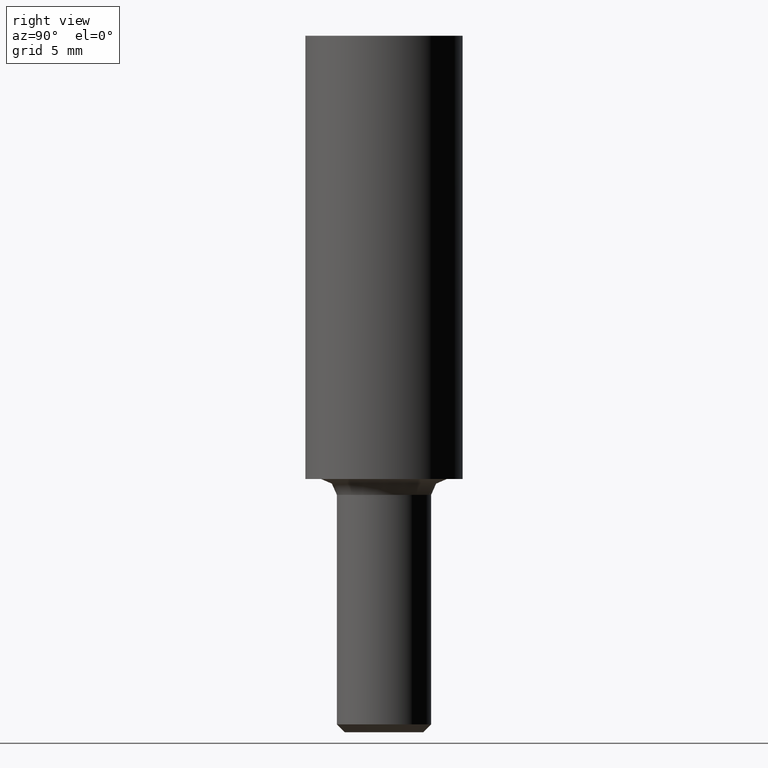
[diagram: clean part render]
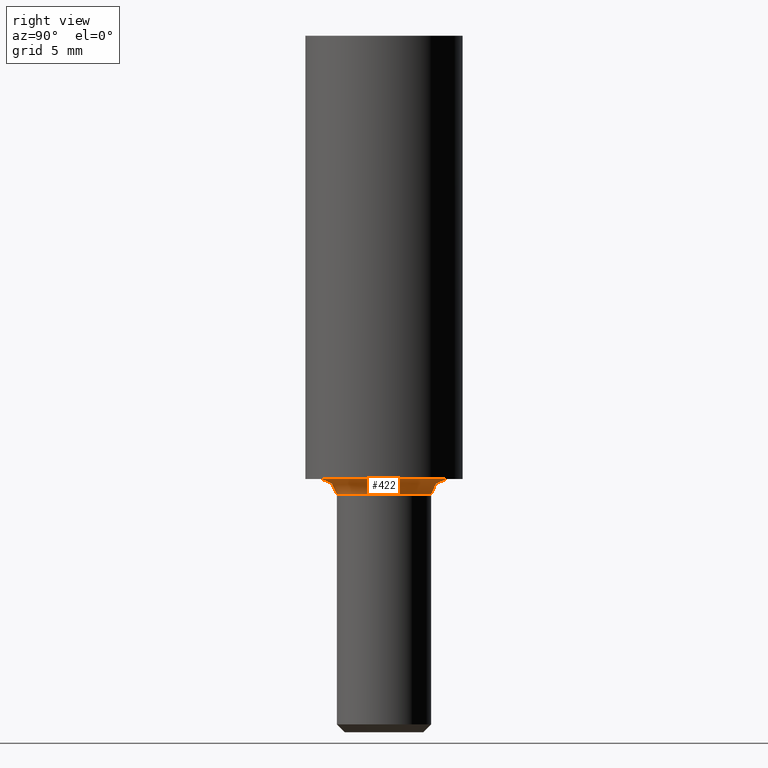
[diagram: same view with one face highlighted and labeled with its STEP entity id]
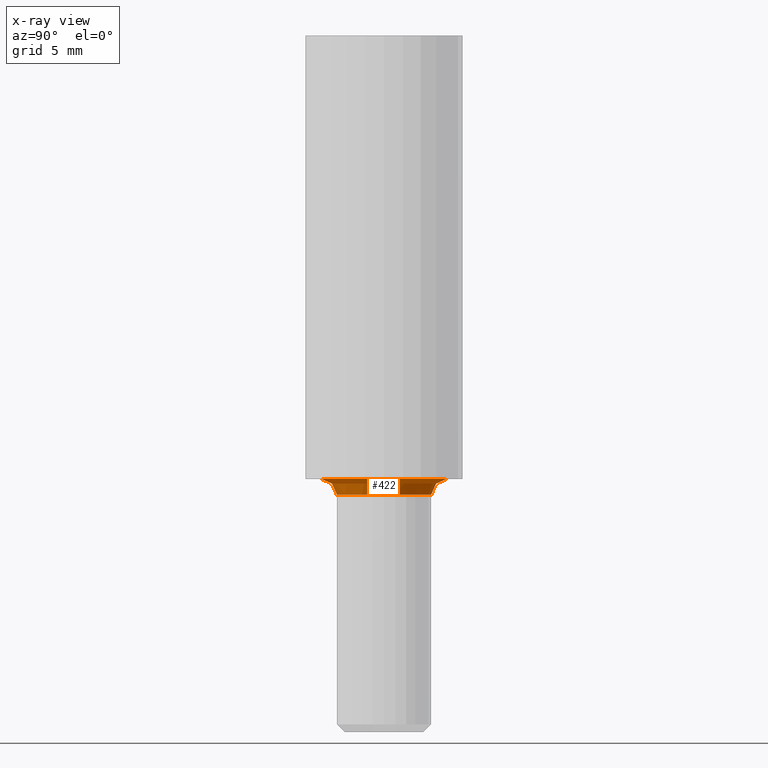
[diagram: x-ray of the same camera — body ghosted, the highlighted face saturated]
A machine part, right view. The second image highlights one B-rep face of the part: STEP entity #422.
The next image is the same camera in x-ray: the body ghosted, the highlighted face saturated — about 0% of this face is hidden behind the body in this view.
In plain terms, the highlighted face is a freeform B-spline surface patch.
Its self-contained STEP definition (entity closure, byte-faithful):
#204=CARTESIAN_POINT('',(4.0,0.0,0.0));
#205=VERTEX_POINT('',#204);
#206=CARTESIAN_POINT('',(-4.0,0.0,0.0));
#207=VERTEX_POINT('',#206);
#208=CARTESIAN_POINT('',(0.0,0.0,0.0));
#209=DIRECTION('',(0.0,-6.123234E-017,-1.0));
#210=DIRECTION('',(-1.0,0.0,0.0));
#211=AXIS2_PLACEMENT_3D('',#208,#209,#210);
#212=CIRCLE('',#211,4.0);
#213=EDGE_CURVE('',#205,#207,#212,.T.);
#215=CARTESIAN_POINT('',(0.0,0.0,0.0));
#216=DIRECTION('',(0.0,-6.123234E-017,-1.0));
#217=DIRECTION('',(-1.0,0.0,0.0));
#218=AXIS2_PLACEMENT_3D('',#215,#216,#217);
#219=CIRCLE('',#218,4.0);
#220=EDGE_CURVE('',#207,#205,#219,.T.);
#232=CARTESIAN_POINT('',(-3.0,0.0,-1.0));
#233=VERTEX_POINT('',#232);
#240=CARTESIAN_POINT('',(3.0,0.0,-1.0));
#241=VERTEX_POINT('',#240);
#242=CARTESIAN_POINT('',(0.0,0.0,-1.0));
#243=DIRECTION('',(0.0,-6.123234E-017,-1.0));
#244=DIRECTION('',(-1.0,0.0,0.0));
#245=AXIS2_PLACEMENT_3D('',#242,#243,#244);
#246=CIRCLE('',#245,3.0);
#247=EDGE_CURVE('',#233,#241,#246,.T.);
#249=CARTESIAN_POINT('',(0.0,0.0,-1.0));
#250=DIRECTION('',(0.0,-6.123234E-017,-1.0));
#251=DIRECTION('',(-1.0,0.0,0.0));
#252=AXIS2_PLACEMENT_3D('',#249,#250,#251);
#253=CIRCLE('',#252,3.0);
#254=EDGE_CURVE('',#241,#233,#253,.T.);
#260=CARTESIAN_POINT('',(-3.0,0.0,-1.0));
#261=CARTESIAN_POINT('',(-3.0,0.0,-0.869939785322581));
#262=CARTESIAN_POINT('',(-3.052038776115778,0.0,-0.606972182656724));
#263=CARTESIAN_POINT('',(-3.274587088527055,0.0,-0.274587088527053));
#264=CARTESIAN_POINT('',(-3.606972182656724,0.0,-0.052038776115779));
#265=CARTESIAN_POINT('',(-3.869939785322581,0.0,-7.963891E-018));
#266=CARTESIAN_POINT('',(-4.0,0.0,0.0));
#267=CARTESIAN_POINT('',(-3.0,0.390180644032257,-1.0));
#268=CARTESIAN_POINT('',(-3.0,0.390180644032257,-0.869939785322581));
#269=CARTESIAN_POINT('',(-3.052038776115778,0.396948818425425,-0.606972182656724));
#270=CARTESIAN_POINT('',(-3.274587088527055,0.425893499713733,-0.274587088527053));
#271=CARTESIAN_POINT('',(-3.606972182656724,0.469123576411812,-0.052038776115779));
#272=CARTESIAN_POINT('',(-3.869939785322581,0.503325199267739,-4.101004E-017));
#273=CARTESIAN_POINT('',(-4.0,0.520240858709675,-3.773245E-017));
#274=CARTESIAN_POINT('',(-2.881695132026207,0.984548886778619,-1.0));
#275=CARTESIAN_POINT('',(-2.881695132026207,0.984548886778619,-0.869939785322581));
#276=CARTESIAN_POINT('',(-2.931681761296019,1.001627126476656,-0.606972182656724));
#277=CARTESIAN_POINT('',(-3.145453890801431,1.074663690889650,-0.274587088527053));
#278=CARTESIAN_POINT('',(-3.464731393371940,1.183746815692041,-0.052038776115779));
#279=CARTESIAN_POINT('',(-3.717328880199542,1.270048302513211,4.963170E-018));
#280=CARTESIAN_POINT('',(-3.842260176034944,1.312731849038159,-3.932038E-017));
#281=CARTESIAN_POINT('',(-2.510343393690837,1.677238525654577,-1.000000000000000));
#282=CARTESIAN_POINT('',(-2.510343393690837,1.677238525654577,-0.869939785322581));
#283=CARTESIAN_POINT('',(-2.553888459636838,1.706332339031009,-0.606972182656725));
#284=CARTESIAN_POINT('',(-2.740112688249732,1.830754540162877,-0.274587088527053));
#285=CARTESIAN_POINT('',(-3.018246263319642,2.016584235238745,-0.052038776115779));
#286=CARTESIAN_POINT('',(-3.238292591355292,2.163604033302146,-2.698336E-016));
#287=CARTESIAN_POINT('',(-3.347124524921115,2.236318034206103,-2.558292E-016));
#288=CARTESIAN_POINT('',(-2.011822118074937,2.285908329214795,-1.000000000000000));
#289=CARTESIAN_POINT('',(-2.011822118074937,2.285908329214795,-0.869939785322581));
#290=CARTESIAN_POINT('',(-2.046719705004026,2.325560286469862,-0.606972182656725));
#291=CARTESIAN_POINT('',(-2.195962244087114,2.495135300134405,-0.274587088527053));
#292=CARTESIAN_POINT('',(-2.418862138783275,2.748402585193690,-0.052038776115779));
#293=CARTESIAN_POINT('',(-2.595210151910046,2.948775862942867,-2.267968E-016));
#294=CARTESIAN_POINT('',(-2.682429490766582,3.047877772286392,-2.027120E-016));
#295=CARTESIAN_POINT('',(-1.177631781629216,2.844239639793226,-1.000000000000000));
#296=CARTESIAN_POINT('',(-1.177631781629216,2.844239639793226,-0.869939785322581));
#297=CARTESIAN_POINT('',(-1.198059287172892,2.893576556404833,-0.606972182656725));
#298=CARTESIAN_POINT('',(-1.285419275720714,3.104570133714581,-0.274587088527053));
#299=CARTESIAN_POINT('',(-1.415895025916354,3.419697753847915,-0.052038776115779));
#300=CARTESIAN_POINT('',(-1.519121361395739,3.669012047009125,-1.987402E-016));
#301=CARTESIAN_POINT('',(-1.570175708838955,3.792319519724302,-2.280029E-016));
#302=CARTESIAN_POINT('',(-0.000082243839032,3.077983219408573,-1.000000000000000));
#303=CARTESIAN_POINT('',(-0.000082243839032,3.077983219408573,-0.869939785322581));
#304=CARTESIAN_POINT('',(-0.000083670461941,3.131374712622881,-0.606972182656725));
#305=CARTESIAN_POINT('',(-0.000089771537802,3.359708036326083,-0.274587088527053));
#306=CARTESIAN_POINT('',(-0.000098883746528,3.700733283696972,-0.052038776115779));
#307=CARTESIAN_POINT('',(-0.000106092901589,3.970536573114840,-2.424042E-016));
#308=CARTESIAN_POINT('',(-0.000109658452043,4.103977625878097,-2.225727E-016));
#309=CARTESIAN_POINT('',(1.177960756985342,2.843827482572481,-1.000000000000000));
#310=CARTESIAN_POINT('',(1.177960756985342,2.843827482572481,-0.869939785322581));
#311=CARTESIAN_POINT('',(1.198393969020654,2.893157249798311,-0.606972182656725));
#312=CARTESIAN_POINT('',(1.285778361871919,3.104120252143417,-0.274587088527053));
#313=CARTESIAN_POINT('',(1.416290560902462,3.419202207304545,-0.052038776115779));
#314=CARTESIAN_POINT('',(1.519545733002094,3.668480372467003,-2.116940E-016));
#315=CARTESIAN_POINT('',(1.570614342647124,3.791769976763309,-2.139739E-016));
#316=CARTESIAN_POINT('',(2.176540998469279,2.176538435504660,-1.000000000000000));
#317=CARTESIAN_POINT('',(2.176540998469279,2.176538435504660,-0.869939785322582));
#318=CARTESIAN_POINT('',(2.214295841711331,2.214293234288864,-0.606972182656725));
#319=CARTESIAN_POINT('',(2.375757683745761,2.375754886195479,-0.274587088527053));
#320=CARTESIAN_POINT('',(2.616907611963526,2.616904530449498,-0.052038776115779));
#321=CARTESIAN_POINT('',(2.807694201453999,2.807690895281084,-2.908709E-016));
#322=CARTESIAN_POINT('',(2.902054664625705,2.902051247339548,-2.537994E-016));
#323=CARTESIAN_POINT('',(2.843797310495395,1.177940836766737,-1.000000000000000));
#324=CARTESIAN_POINT('',(2.843797310495395,1.177940836766737,-0.869939785322581));
#325=CARTESIAN_POINT('',(2.893126554348569,1.198373703260784,-0.606972182656724));
#326=CARTESIAN_POINT('',(3.104087318445396,1.285756618375037,-0.274587088527053));
#327=CARTESIAN_POINT('',(3.419165930690298,1.416266610344336,-0.052038776115779));
#328=CARTESIAN_POINT('',(3.668441451093161,1.519520036319924,-6.002865E-017));
#329=CARTESIAN_POINT('',(3.791729747327193,1.570587782355650,-1.030960E-016));
#330=CARTESIAN_POINT('',(3.078101344752303,2.997602E-015,-1.0));
#331=CARTESIAN_POINT('',(3.078101344752303,2.997602E-015,-0.869939785322581));
#332=CARTESIAN_POINT('',(3.131494886999383,2.831069E-015,-0.606972182656724));
#333=CARTESIAN_POINT('',(3.359836973567885,3.219647E-015,-0.274587088527053));
#334=CARTESIAN_POINT('',(3.700875308639938,3.330669E-015,-0.052038776115779));
#335=CARTESIAN_POINT('',(3.970688952437292,3.719247E-015,-1.746625E-017));
#336=CARTESIAN_POINT('',(4.104135126336404,3.996803E-015,4.958412E-020));
#337=CARTESIAN_POINT('',(2.843797310495393,-1.177940836766743,-1.000000000000000));
#338=CARTESIAN_POINT('',(2.843797310495393,-1.177940836766743,-0.869939785322581));
#339=CARTESIAN_POINT('',(2.893126554348569,-1.198373703260788,-0.606972182656725));
#340=CARTESIAN_POINT('',(3.104087318445393,-1.285756618375043,-0.274587088527053));
#341=CARTESIAN_POINT('',(3.419165930690297,-1.416266610344341,-0.052038776115779));
#342=CARTESIAN_POINT('',(3.668441451093159,-1.519520036319929,8.211030E-017));
#343=CARTESIAN_POINT('',(3.791729747327192,-1.570587782355656,1.028977E-016));
#344=CARTESIAN_POINT('',(2.176540998469282,-2.176538435504656,-1.0));
#345=CARTESIAN_POINT('',(2.176540998469282,-2.176538435504656,-0.869939785322581));
#346=CARTESIAN_POINT('',(2.214295841711332,-2.214293234288860,-0.606972182656724));
#347=CARTESIAN_POINT('',(2.375757683745765,-2.375754886195472,-0.274587088527053));
#348=CARTESIAN_POINT('',(2.616907611963529,-2.616904530449495,-0.052038776115779));
#349=CARTESIAN_POINT('',(2.807694201454003,-2.807690895281078,3.073755E-016));
#350=CARTESIAN_POINT('',(2.902054664625709,-2.902051247339541,2.544936E-016));
#351=CARTESIAN_POINT('',(1.177960756985343,-2.843827482572483,-1.000000000000000));
#352=CARTESIAN_POINT('',(1.177960756985343,-2.843827482572483,-0.869939785322581));
#353=CARTESIAN_POINT('',(1.198393969020654,-2.893157249798311,-0.606972182656724));
#354=CARTESIAN_POINT('',(1.285778361871919,-3.104120252143417,-0.274587088527053));
#355=CARTESIAN_POINT('',(1.416290560902463,-3.419202207304546,-0.052038776115779));
#356=CARTESIAN_POINT('',(1.519545733002094,-3.668480372467003,1.698197E-016));
#357=CARTESIAN_POINT('',(1.570614342647123,-3.791769976763310,2.113955E-016));
#358=CARTESIAN_POINT('',(-0.000082243839032,-3.077983219408573,-1.000000000000000));
#359=CARTESIAN_POINT('',(-0.000082243839032,-3.077983219408573,-0.869939785322581));
#360=CARTESIAN_POINT('',(-0.000083670461940,-3.131374712622880,-0.606972182656724));
#361=CARTESIAN_POINT('',(-0.000089771537801,-3.359708036326082,-0.274587088527053));
#362=CARTESIAN_POINT('',(-0.000098883746528,-3.700733283696971,-0.052038776115779));
#363=CARTESIAN_POINT('',(-0.000106092901589,-3.970536573114839,2.426747E-016));
#364=CARTESIAN_POINT('',(-0.000109658452042,-4.103977625878096,2.321920E-016));
#365=CARTESIAN_POINT('',(-1.177631781629215,-2.844239639793227,-1.000000000000000));
#366=CARTESIAN_POINT('',(-1.177631781629215,-2.844239639793227,-0.869939785322581));
#367=CARTESIAN_POINT('',(-1.198059287172892,-2.893576556404836,-0.606972182656725));
#368=CARTESIAN_POINT('',(-1.285419275720713,-3.104570133714579,-0.274587088527053));
#369=CARTESIAN_POINT('',(-1.415895025916352,-3.419697753847917,-0.052038776115779));
#370=CARTESIAN_POINT('',(-1.519121361395738,-3.669012047009126,1.439658E-016));
#371=CARTESIAN_POINT('',(-1.570175708838954,-3.792319519724303,1.921040E-016));
#372=CARTESIAN_POINT('',(-2.011822118074935,-2.285908329214796,-1.0));
#373=CARTESIAN_POINT('',(-2.011822118074935,-2.285908329214796,-0.869939785322581));
#374=CARTESIAN_POINT('',(-2.046719705004025,-2.325560286469861,-0.606972182656724));
#375=CARTESIAN_POINT('',(-2.195962244087112,-2.495135300134407,-0.274587088527053));
#376=CARTESIAN_POINT('',(-2.418862138783276,-2.748402585193692,-0.052038776115778));
#377=CARTESIAN_POINT('',(-2.595210151910046,-2.948775862942868,3.665354E-016));
#378=CARTESIAN_POINT('',(-2.682429490766581,-3.047877772286394,3.085128E-016));
#379=CARTESIAN_POINT('',(-2.510343393690835,-1.677238525654579,-1.000000000000000));
#380=CARTESIAN_POINT('',(-2.510343393690835,-1.677238525654579,-0.869939785322581));
#381=CARTESIAN_POINT('',(-2.553888459636836,-1.706332339031011,-0.606972182656725));
#382=CARTESIAN_POINT('',(-2.740112688249731,-1.830754540162879,-0.274587088527053));
#383=CARTESIAN_POINT('',(-3.018246263319639,-2.016584235238747,-0.052038776115779));
#384=CARTESIAN_POINT('',(-3.238292591355290,-2.163604033302148,5.120764E-017));
#385=CARTESIAN_POINT('',(-3.347124524921113,-2.236318034206105,7.160299E-017));
#386=CARTESIAN_POINT('',(-2.881695132026210,-0.984548886778617,-1.000000000000000));
#387=CARTESIAN_POINT('',(-2.881695132026210,-0.984548886778617,-0.869939785322581));
#388=CARTESIAN_POINT('',(-2.931681761296023,-1.001627126476654,-0.606972182656725));
#389=CARTESIAN_POINT('',(-3.145453890801433,-1.074663690889646,-0.274587088527053));
#390=CARTESIAN_POINT('',(-3.464731393371944,-1.183746815692039,-0.052038776115779));
#391=CARTESIAN_POINT('',(-3.717328880199547,-1.270048302513209,1.496874E-016));
#392=CARTESIAN_POINT('',(-3.842260176034947,-1.312731849038155,1.492884E-016));
#393=CARTESIAN_POINT('',(-3.0,-0.390180644032258,-1.0));
#394=CARTESIAN_POINT('',(-3.0,-0.390180644032258,-0.869939785322581));
#395=CARTESIAN_POINT('',(-3.052038776115778,-0.396948818425426,-0.606972182656724));
#396=CARTESIAN_POINT('',(-3.274587088527055,-0.425893499713734,-0.274587088527053));
#397=CARTESIAN_POINT('',(-3.606972182656724,-0.469123576411813,-0.052038776115779));
#398=CARTESIAN_POINT('',(-3.869939785322581,-0.503325199267741,2.508225E-017));
#399=CARTESIAN_POINT('',(-4.0,-0.520240858709677,3.773245E-017));
#400=CARTESIAN_POINT('',(-3.0,-7.347881E-016,-1.0));
#401=CARTESIAN_POINT('',(-3.0,-7.347881E-016,-0.869939785322581));
#402=CARTESIAN_POINT('',(-3.052038776115778,-7.475339E-016,-0.606972182656724));
#403=CARTESIAN_POINT('',(-3.274587088527055,-8.020425E-016,-0.274587088527053));
#404=CARTESIAN_POINT('',(-3.606972182656724,-8.834534E-016,-0.052038776115779));
#405=CARTESIAN_POINT('',(-3.869939785322581,-9.478619E-016,-7.963891E-018));
#406=CARTESIAN_POINT('',(-4.0,-9.797174E-016,0.0));
#407=B_SPLINE_SURFACE_WITH_KNOTS('',3,3,((#260,#267,#274,#281,#288,#295,#302,#309,#316,#323,#330,#337,#344,#351,#358,#365,#372,#379,#386,#393,#400),(#261,#268,#275,#282,#289,#296,#303,#310,#317,#324,#331,#338,#345,#352,#359,#366,#373,#380,#387,#394,#401),(#262,#269,#276,#283,#290,#297,#304,#311,#318,#325,#332,#339,#346,#353,#360,#367,#374,#381,#388,#395,#402),(#263,#270,#277,#284,#291,#298,#305,#312,#319,#326,#333,#340,#347,#354,#361,#368,#375,#382,#389,#396,#403),(#264,#271,#278,#285,#292,#299,#306,#313,#320,#327,#334,#341,#348,#355,#362,#369,#376,#383,#390,#397,#404),(#265,#272,#279,#286,#293,#300,#307,#314,#321,#328,#335,#342,#349,#356,#363,#370,#377,#384,#391,#398,#405),(#266,#273,#280,#287,#294,#301,#308,#315,#322,#329,#336,#343,#350,#357,#364,#371,#378,#385,#392,#399,#406)),.UNSPECIFIED.,.F.,.T.,.U.,(4,1,1,1,4),(4,1,1,1,1,1,1,1,1,1,1,1,1,1,1,1,1,1,4),(0.0,0.390180644032257,0.780361288064513,1.170541932096770,1.560722576129026),(0.0,1.325547455645154,1.991528062118919,2.657508668592683,3.983056124237837,5.308603579882992,6.634151035528146,7.959698491173301,9.285245946818453,10.610793402463608,11.936340858108760,13.261888313753918,14.587435769399070,15.912983225044226,17.238530680689383,18.564078136334537,19.230058742808300,19.896039349282059,21.221586804927217),.UNSPECIFIED.);
#408=ORIENTED_EDGE('',*,*,#254,.F.);
#409=ORIENTED_EDGE('',*,*,#247,.F.);
#410=CARTESIAN_POINT('',(-4.0,0.0,-1.0));
#411=DIRECTION('',(0.0,-1.0,6.123234E-017));
#412=DIRECTION('',(1.0,0.0,0.0));
#413=AXIS2_PLACEMENT_3D('',#410,#411,#412);
#414=CIRCLE('',#413,1.0);
#415=EDGE_CURVE('',#233,#207,#414,.T.);
#416=ORIENTED_EDGE('',*,*,#415,.T.);
#417=ORIENTED_EDGE('',*,*,#220,.T.);
#418=ORIENTED_EDGE('',*,*,#213,.T.);
#419=ORIENTED_EDGE('',*,*,#415,.F.);
#420=EDGE_LOOP('',(#408,#409,#416,#417,#418,#419));
#421=FACE_OUTER_BOUND('',#420,.T.);
#422=ADVANCED_FACE('',(#421),#407,.T.);